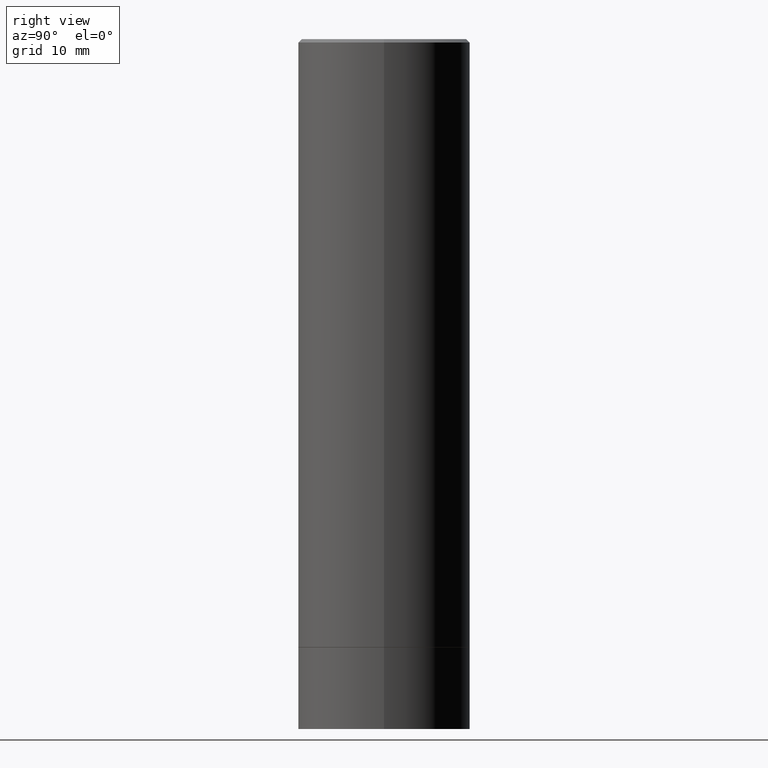
[diagram: clean part render]
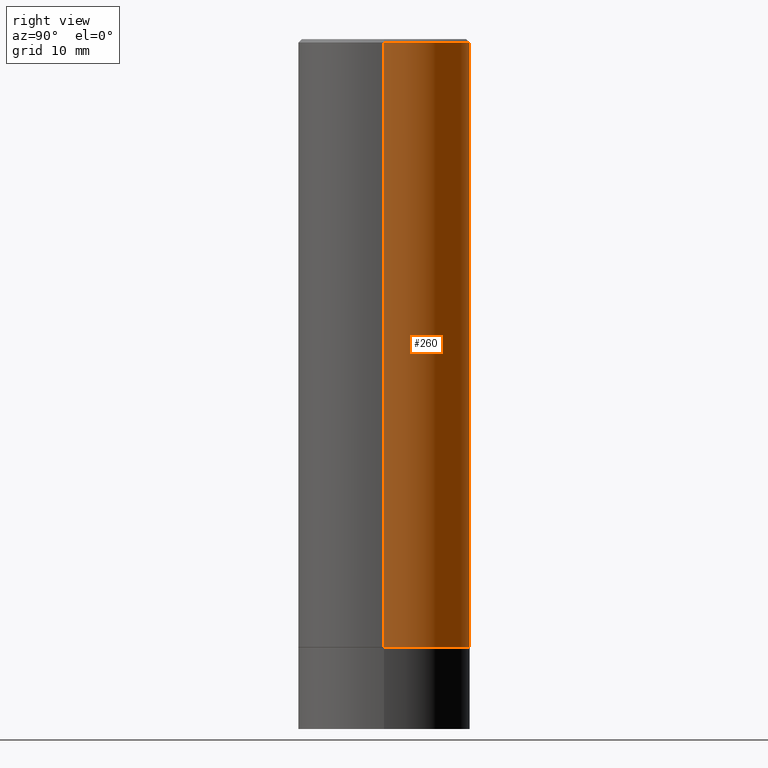
[diagram: same view with one face highlighted and labeled with its STEP entity id]
A machine part, right view. The second image highlights one B-rep face of the part: STEP entity #260.
In plain terms, the highlighted cylindrical surface (partial cylindrical patch) has radius 12.7 mm, axis along (-0, 0, 1).
Its self-contained STEP definition (entity closure, byte-faithful):
#4 = ORIENTED_EDGE ( 'NONE', *, *, #96, .T. ) ;
#9 = DIRECTION ( 'NONE',  ( -2.445468806185136597E-29, 3.491481338843145583E-15, 1.000000000000000000 ) ) ;
#33 = LINE ( 'NONE', #258, #139 ) ;
#34 = AXIS2_PLACEMENT_3D ( 'NONE', #171, #267, #209 ) ;
#53 = EDGE_CURVE ( 'NONE', #120, #146, #104, .T. ) ;
#96 = EDGE_CURVE ( 'NONE', #275, #179, #33, .T. ) ;
#104 = LINE ( 'NONE', #221, #370 ) ;
#109 = AXIS2_PLACEMENT_3D ( 'NONE', #223, #9, #366 ) ;
#120 = VERTEX_POINT ( 'NONE', #326 ) ;
#139 = VECTOR ( 'NONE', #140, 39.37007874015748143 ) ;
#140 = DIRECTION ( 'NONE',  ( -2.445468806185136877E-29, 3.491481338843145188E-15, 1.000000000000000000 ) ) ;
#146 = VERTEX_POINT ( 'NONE', #361 ) ;
#168 = CARTESIAN_POINT ( 'NONE',  ( -0.4999999999999996114, 3.421651712066267296E-15, -0.02000000000000011491 ) ) ;
#171 = CARTESIAN_POINT ( 'NONE',  ( 4.890937612370302060E-31, -6.982962677686331052E-17, -0.02000000000000011491 ) ) ;
#179 = VERTEX_POINT ( 'NONE', #168 ) ;
#183 = CARTESIAN_POINT ( 'NONE',  ( 0.000000000000000000, 0.000000000000000000, 0.000000000000000000 ) ) ;
#184 = DIRECTION ( 'NONE',  ( -2.445468806185136877E-29, 3.491481338843145188E-15, 1.000000000000000000 ) ) ;
#187 = AXIS2_PLACEMENT_3D ( 'NONE', #183, #336, #280 ) ;
#209 = DIRECTION ( 'NONE',  ( 1.000000000000000000, -6.982962677686266711E-15, 0.000000000000000000 ) ) ;
#210 = ORIENTED_EDGE ( 'NONE', *, *, #53, .F. ) ;
#213 = CARTESIAN_POINT ( 'NONE',  ( -0.5000000000000000000, -2.638730179370047780E-15, -3.526600000000000179 ) ) ;
#221 = CARTESIAN_POINT ( 'NONE',  ( 0.4999999999999997780, -3.491481338843131778E-15, 2.438088387897966775E-29 ) ) ;
#223 = CARTESIAN_POINT ( 'NONE',  ( 8.624190291892503020E-29, -1.231305808956423806E-14, -3.526600000000000179 ) ) ;
#231 = EDGE_CURVE ( 'NONE', #146, #179, #354, .T. ) ;
#240 = CYLINDRICAL_SURFACE ( 'NONE', #187, 0.4999999999999997780 ) ;
#258 = CARTESIAN_POINT ( 'NONE',  ( -0.4999999999999997780, 3.552713678800499352E-15, -2.459467545127452050E-29 ) ) ;
#260 = ADVANCED_FACE ( 'NONE', ( #263 ), #240, .T. ) ;
#263 = FACE_OUTER_BOUND ( 'NONE', #342, .T. ) ;
#267 = DIRECTION ( 'NONE',  ( -2.445468806185136597E-29, 3.491481338843145583E-15, 1.000000000000000000 ) ) ;
#271 = ORIENTED_EDGE ( 'NONE', *, *, #231, .F. ) ;
#275 = VERTEX_POINT ( 'NONE', #213 ) ;
#278 = EDGE_CURVE ( 'NONE', #120, #275, #283, .T. ) ;
#280 = DIRECTION ( 'NONE',  ( 1.000000000000000000, -6.982962677686266711E-15, 4.876176775795935793E-29 ) ) ;
#283 = CIRCLE ( 'NONE', #109, 0.5000000000000000000 ) ;
#326 = CARTESIAN_POINT ( 'NONE',  ( 0.5000000000000000000, -1.580453942840736984E-14, -3.526600000000000179 ) ) ;
#336 = DIRECTION ( 'NONE',  ( -2.445468806185136597E-29, 3.491481338843145583E-15, 1.000000000000000000 ) ) ;
#342 = EDGE_LOOP ( 'NONE', ( #373, #4, #271, #210 ) ) ;
#354 = CIRCLE ( 'NONE', #34, 0.4999999999999996114 ) ;
#361 = CARTESIAN_POINT ( 'NONE',  ( 0.4999999999999996114, -3.500078625662626318E-15, -0.02000000000000011491 ) ) ;
#366 = DIRECTION ( 'NONE',  ( 1.000000000000000000, -6.982962677686266711E-15, 0.000000000000000000 ) ) ;
#370 = VECTOR ( 'NONE', #184, 39.37007874015748143 ) ;
#373 = ORIENTED_EDGE ( 'NONE', *, *, #278, .T. ) ;